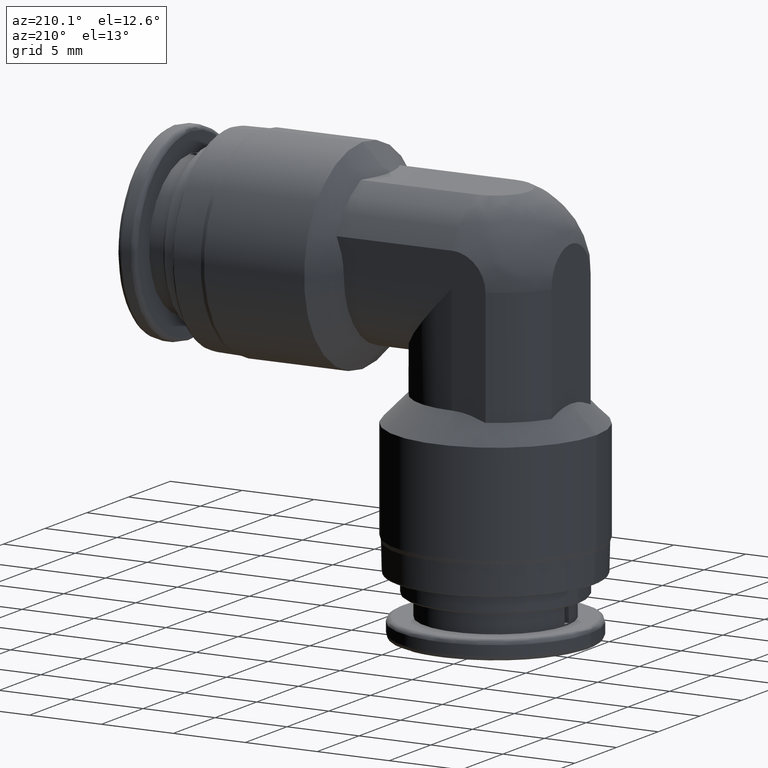
[diagram: clean part render]
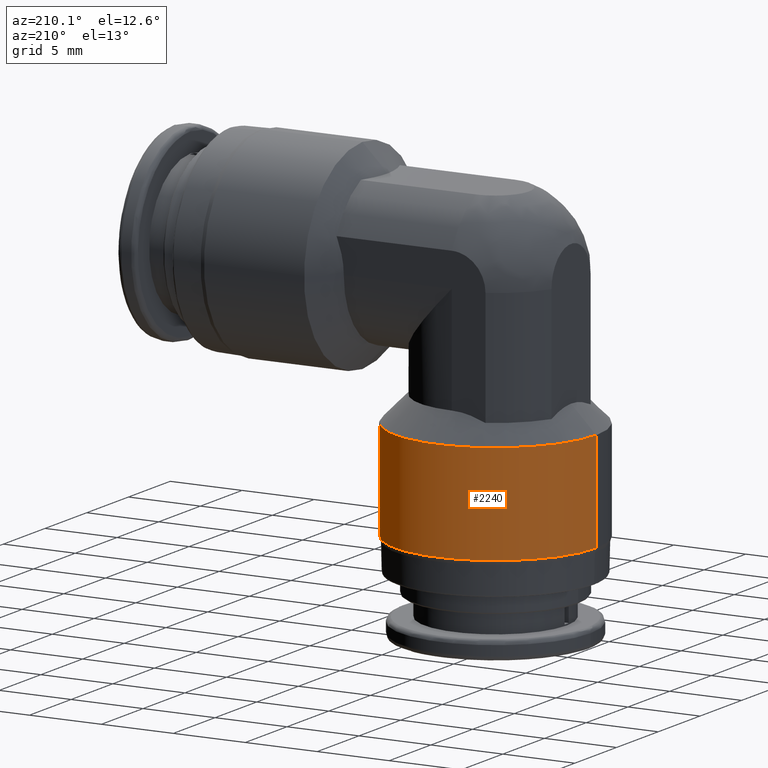
[diagram: same view with one face highlighted and labeled with its STEP entity id]
A machine part, auxiliary view. The second image highlights one B-rep face of the part: STEP entity #2240.
In plain terms, the highlighted cylindrical surface (partial cylindrical patch) has radius 7 mm, axis along (0, 0, 1).
Its self-contained STEP definition (entity closure, byte-faithful):
#30 = AXIS2_PLACEMENT_3D ( 'NONE', #3389, #2282, #2847 ) ;
#80 = EDGE_CURVE ( 'NONE', #2545, #1563, #3251, .T. ) ;
#211 = EDGE_CURVE ( 'NONE', #1073, #2545, #1525, .T. ) ;
#378 = CIRCLE ( 'NONE', #781, 0.2755905511811023700 ) ;
#522 = FACE_OUTER_BOUND ( 'NONE', #901, .T. ) ;
#534 = ORIENTED_EDGE ( 'NONE', *, *, #3040, .T. ) ;
#781 = AXIS2_PLACEMENT_3D ( 'NONE', #1982, #2259, #3427 ) ;
#848 = CARTESIAN_POINT ( 'NONE',  ( -0.2755905511811024800, 3.375010863791918400E-017, -0.09842519685039338700 ) ) ;
#901 = EDGE_LOOP ( 'NONE', ( #534, #3024, #2081, #1432 ) ) ;
#1073 = VERTEX_POINT ( 'NONE', #3137 ) ;
#1205 = VERTEX_POINT ( 'NONE', #2922 ) ;
#1210 = CARTESIAN_POINT ( 'NONE',  ( 0.2755905511811022600, 0.0000000000000000000, -0.09842519685039402600 ) ) ;
#1222 = VECTOR ( 'NONE', #2523, 39.37007874015748100 ) ;
#1242 = CARTESIAN_POINT ( 'NONE',  ( -1.153005258185311000E-016, 0.0000000000000000000, -0.09842519685039370600 ) ) ;
#1298 = DIRECTION ( 'NONE',  ( 1.171453342316279900E-015, 0.0000000000000000000, 1.000000000000000000 ) ) ;
#1308 = EDGE_CURVE ( 'NONE', #1205, #1563, #1532, .T. ) ;
#1432 = ORIENTED_EDGE ( 'NONE', *, *, #1308, .F. ) ;
#1509 = DIRECTION ( 'NONE',  ( 1.000000000000000000, 0.0000000000000000000, -1.177133787269976200E-015 ) ) ;
#1525 = LINE ( 'NONE', #848, #1222 ) ;
#1532 = LINE ( 'NONE', #1210, #2457 ) ;
#1563 = VERTEX_POINT ( 'NONE', #2548 ) ;
#1788 = AXIS2_PLACEMENT_3D ( 'NONE', #1242, #2941, #1509 ) ;
#1982 = CARTESIAN_POINT ( 'NONE',  ( -7.471474073040839200E-016, 0.0000000000000000000, -0.6377952755905514900 ) ) ;
#2081 = ORIENTED_EDGE ( 'NONE', *, *, #80, .T. ) ;
#2240 = ADVANCED_FACE ( 'NONE', ( #522 ), #3565, .T. ) ;
#2259 = DIRECTION ( 'NONE',  ( 1.171453342316279900E-015, 0.0000000000000000000, 1.000000000000000000 ) ) ;
#2278 = CARTESIAN_POINT ( 'NONE',  ( -0.2755905510578740600, 0.0000000000000000000, -0.3641732283464562100 ) ) ;
#2282 = DIRECTION ( 'NONE',  ( -1.171453342316279900E-015, -0.0000000000000000000, -1.000000000000000000 ) ) ;
#2457 = VECTOR ( 'NONE', #1298, 39.37007874015748100 ) ;
#2523 = DIRECTION ( 'NONE',  ( 1.171453342316279900E-015, 0.0000000000000000000, 1.000000000000000000 ) ) ;
#2545 = VERTEX_POINT ( 'NONE', #2278 ) ;
#2548 = CARTESIAN_POINT ( 'NONE',  ( 0.2755905510578731700, 3.375010862282801000E-017, -0.3641732283464568800 ) ) ;
#2847 = DIRECTION ( 'NONE',  ( 1.000000000000000000, 0.0000000000000000000, -1.239088197126290900E-015 ) ) ;
#2922 = CARTESIAN_POINT ( 'NONE',  ( 0.2755905511811015400, 0.0000000000000000000, -0.6377952755905517100 ) ) ;
#2941 = DIRECTION ( 'NONE',  ( 1.171453342316279900E-015, 0.0000000000000000000, 1.000000000000000000 ) ) ;
#3024 = ORIENTED_EDGE ( 'NONE', *, *, #211, .T. ) ;
#3040 = EDGE_CURVE ( 'NONE', #1205, #1073, #378, .T. ) ;
#3137 = CARTESIAN_POINT ( 'NONE',  ( -0.2755905511811030400, 3.375010863791917800E-017, -0.6377952755905511600 ) ) ;
#3251 = CIRCLE ( 'NONE', #30, 0.2755905511811023700 ) ;
#3389 = CARTESIAN_POINT ( 'NONE',  ( -4.266119455285659800E-016, 0.0000000000000000000, -0.3641732283464565500 ) ) ;
#3427 = DIRECTION ( 'NONE',  ( 1.000000000000000000, 0.0000000000000000000, -9.912705577010326500E-016 ) ) ;
#3565 = CYLINDRICAL_SURFACE ( 'NONE', #1788, 0.2755905511811023700 ) ;